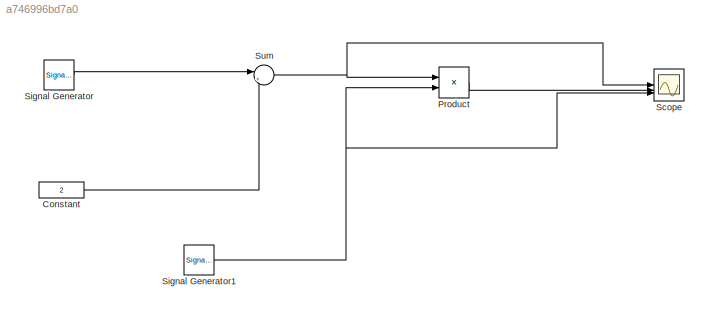
MODEL slx_a746996bd7a0
KIND model
CONFIG AbsTol = auto
CONFIG EnableMultiTasking = off
CONFIG FixedStep = auto
CONFIG MaxStep = auto
CONFIG MinStep = auto
CONFIG RelTol = 1e-3
CONFIG SampleTimeConstraint = Unconstrained
CONFIG SolverName = VariableStepAuto
CONFIG StartTime = 0.0
CONFIG StopTime = 10.0
BLOCK [Constant] Constant
  SampleTime = 0.01
  Value = 2
BLOCK [Product] Product
BLOCK [Scope] Scope
  Floating = off
  NumInputPorts = 3
  ScopeSpecificationString = Simulink.scopes.TimeScopeBlockCfg('CurrentConfiguration', extmgr.ConfigurationSet(extmgr.Configuration('Core','General UI',true),extmgr.Configuration('Core','Source UI',true),extmgr.Configuration('Sources','WiredSimulink',true),extmgr.Configuration('Visuals','Time Domain',true,'SerializedDisplays',{struct('MinYLimReal','-3.24994','MaxYLimReal','9.24997','YLabelReal','','MinYLimMag','0.00000','MaxY...<+2717ch>
BLOCK [SignalGenerator] Signal Generator
  Amplitude = 3
  Frequency = 3
  Units = rad/sec
BLOCK [SignalGenerator] Signal Generator1
  Amplitude = 2
  Frequency = 100
  Units = rad/sec
BLOCK [Sum] Sum
  Inputs = |++
LINE Constant:1 -> Sum:2
LINE Product:1 -> Scope:2
NET Signal Generator1:1 -> Product:2, Scope:3
LINE Signal Generator:1 -> Sum:1
NET Sum:1 -> Product:1, Scope:1
note: NET lines group one-source signal fan-out (src -> all destinations, sorted); 1:1 wires keep LINE
